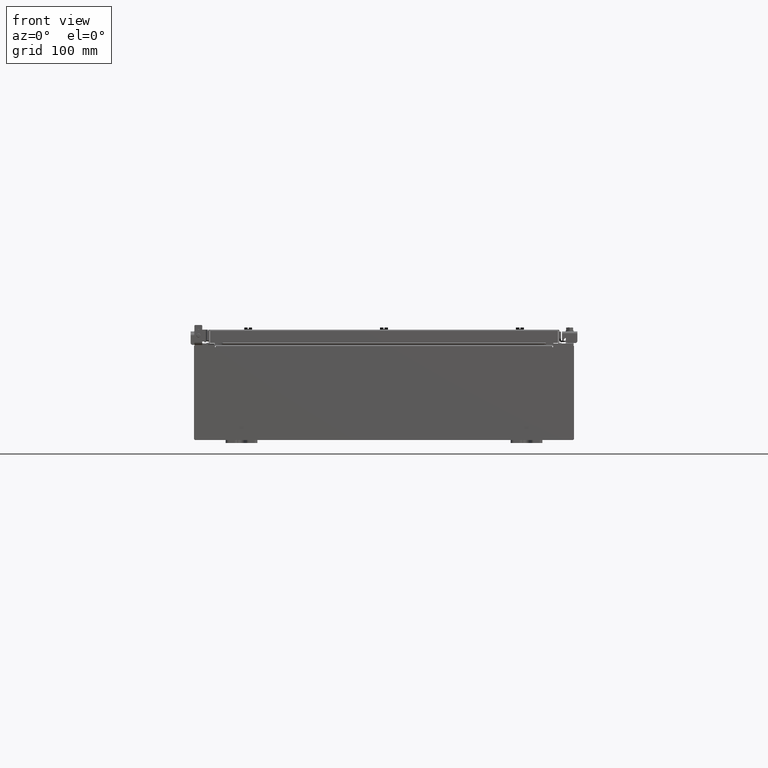
[diagram: clean part render]
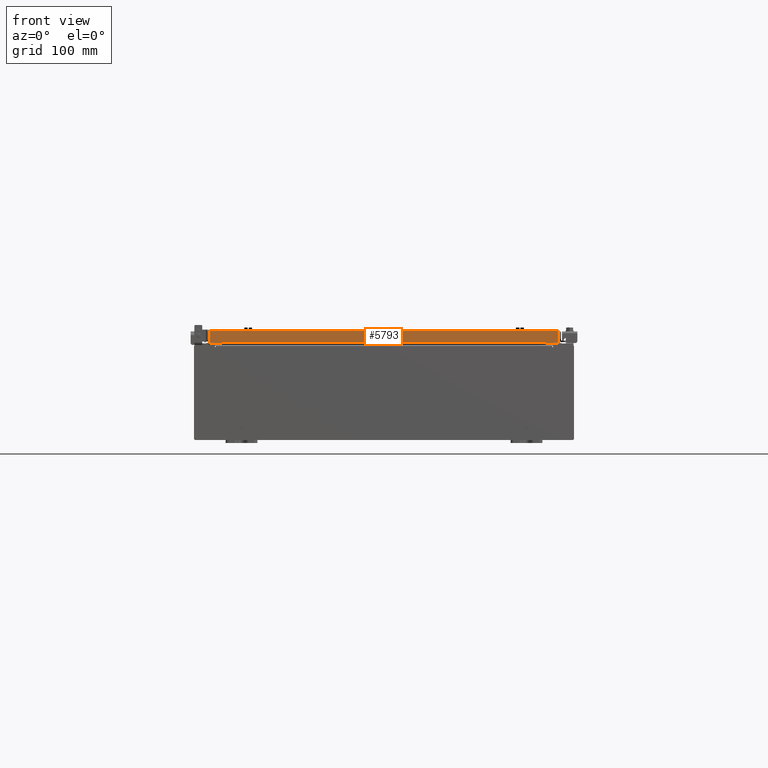
[diagram: same view with one face highlighted and labeled with its STEP entity id]
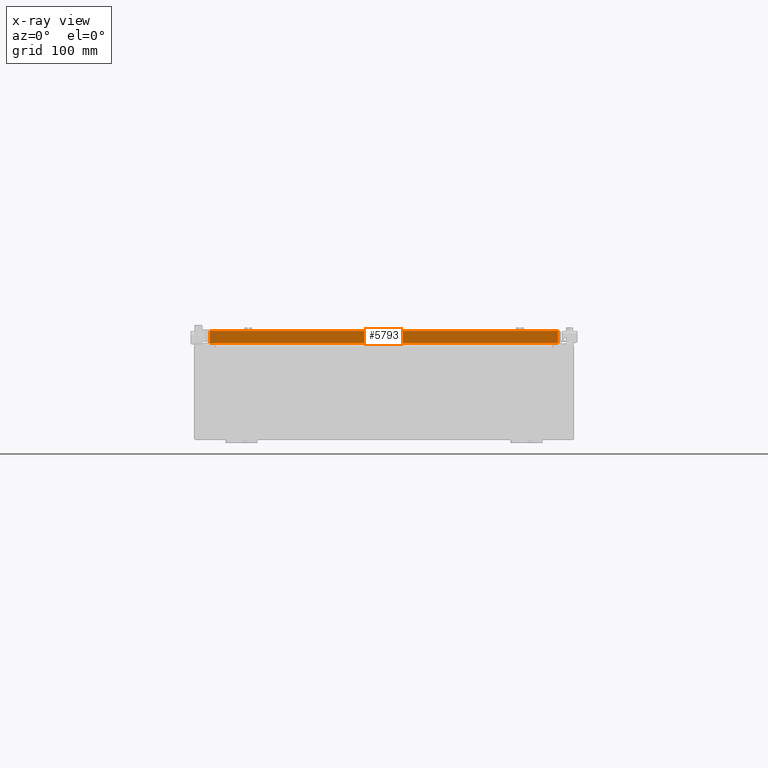
[diagram: x-ray of the same camera — body ghosted, the highlighted face saturated]
A machine part, front view. The second image highlights one B-rep face of the part: STEP entity #5793.
The next image is the same camera in x-ray: the body ghosted, the highlighted face saturated — about 0% of this face is hidden behind the body in this view.
In plain terms, the highlighted planar face has unit normal (-0, 1, -0).
Its self-contained STEP definition (entity closure, byte-faithful):
#786 = CARTESIAN_POINT ( 'NONE',  ( 11.07799999999999600, -17.09400000000000100, -0.8499999999999996400 ) ) ;
#1456 = CARTESIAN_POINT ( 'NONE',  ( 10.23915786437626700, -17.09399999999999800, -0.8500000000000012000 ) ) ;
#1516 = ORIENTED_EDGE ( 'NONE', *, *, #13986, .T. ) ;
#1693 = DIRECTION ( 'NONE',  ( -1.000000000000000000, 4.379057701015053300E-047, 1.233005954894504400E-016 ) ) ;
#1699 = AXIS2_PLACEMENT_3D ( 'NONE', #22364, #8114, #20690 ) ;
#2214 = LINE ( 'NONE', #20783, #20196 ) ;
#2250 = DIRECTION ( 'NONE',  ( 0.0000000000000000000, -2.818880942772360500E-015, -1.000000000000000000 ) ) ;
#2802 = LINE ( 'NONE', #786, #7042 ) ;
#2919 = ORIENTED_EDGE ( 'NONE', *, *, #18024, .F. ) ;
#3241 = LINE ( 'NONE', #1456, #16988 ) ;
#3283 = DIRECTION ( 'NONE',  ( -1.000000000000000000, 0.0000000000000000000, 0.0000000000000000000 ) ) ;
#3595 = EDGE_CURVE ( 'NONE', #17325, #19480, #2214, .T. ) ;
#4311 = EDGE_CURVE ( 'NONE', #19480, #13800, #22152, .T. ) ;
#4323 = CARTESIAN_POINT ( 'NONE',  ( 11.07799999999999600, -17.09400000000000100, -0.8499999999999996400 ) ) ;
#5491 = EDGE_CURVE ( 'NONE', #14289, #18895, #2802, .T. ) ;
#5793 = ADVANCED_FACE ( 'NONE', ( #7617 ), #11646, .F. ) ;
#7042 = VECTOR ( 'NONE', #20600, 39.37007874015748100 ) ;
#7617 = FACE_OUTER_BOUND ( 'NONE', #9059, .T. ) ;
#7637 = CARTESIAN_POINT ( 'NONE',  ( 10.98915786437626700, -17.09400000000000100, -0.8499999999999996400 ) ) ;
#7732 = CARTESIAN_POINT ( 'NONE',  ( 10.98915786437626500, -17.09400000000000100, -0.08769999999999897300 ) ) ;
#8114 = DIRECTION ( 'NONE',  ( -3.475696988576954900E-031, 1.000000000000000000, -2.818880942772360500E-015 ) ) ;
#9059 = EDGE_LOOP ( 'NONE', ( #18515, #1516, #9233, #2919, #14568, #14760 ) ) ;
#9233 = ORIENTED_EDGE ( 'NONE', *, *, #5491, .F. ) ;
#9397 = CARTESIAN_POINT ( 'NONE',  ( 11.07799999999999600, -17.09400000000000100, -0.08770000000000007000 ) ) ;
#10261 = LINE ( 'NONE', #9397, #13929 ) ;
#10545 = VERTEX_POINT ( 'NONE', #17071 ) ;
#11173 = DIRECTION ( 'NONE',  ( 1.000000000000000000, 6.951393977153906300E-032, -9.864047639156036200E-017 ) ) ;
#11193 = CARTESIAN_POINT ( 'NONE',  ( -10.98915786437626900, -17.09400000000000100, 4.844676449176231400E-014 ) ) ;
#11260 = VECTOR ( 'NONE', #2250, 39.37007874015748100 ) ;
#11646 = PLANE ( 'NONE',  #1699 ) ;
#11844 = LINE ( 'NONE', #11193, #11260 ) ;
#13800 = VERTEX_POINT ( 'NONE', #17885 ) ;
#13929 = VECTOR ( 'NONE', #11173, 39.37007874015748100 ) ;
#13986 = EDGE_CURVE ( 'NONE', #10545, #18895, #11844, .T. ) ;
#14289 = VERTEX_POINT ( 'NONE', #15928 ) ;
#14568 = ORIENTED_EDGE ( 'NONE', *, *, #4311, .F. ) ;
#14760 = ORIENTED_EDGE ( 'NONE', *, *, #3595, .F. ) ;
#15359 = DIRECTION ( 'NONE',  ( -0.0000000000000000000, -2.818880942772360500E-015, -1.000000000000000000 ) ) ;
#15928 = CARTESIAN_POINT ( 'NONE',  ( -10.23915786437627100, -17.09399999999999800, -0.8500000000000012000 ) ) ;
#16645 = EDGE_CURVE ( 'NONE', #10545, #17325, #10261, .T. ) ;
#16988 = VECTOR ( 'NONE', #3283, 39.37007874015748100 ) ;
#17071 = CARTESIAN_POINT ( 'NONE',  ( -10.98915786437627200, -17.09400000000000100, -0.08769999999999787700 ) ) ;
#17325 = VERTEX_POINT ( 'NONE', #7732 ) ;
#17366 = VECTOR ( 'NONE', #1693, 39.37007874015748100 ) ;
#17885 = CARTESIAN_POINT ( 'NONE',  ( 10.23915786437626700, -17.09399999999999800, -0.8500000000000012000 ) ) ;
#18024 = EDGE_CURVE ( 'NONE', #13800, #14289, #3241, .T. ) ;
#18515 = ORIENTED_EDGE ( 'NONE', *, *, #16645, .F. ) ;
#18895 = VERTEX_POINT ( 'NONE', #20374 ) ;
#19480 = VERTEX_POINT ( 'NONE', #7637 ) ;
#20196 = VECTOR ( 'NONE', #15359, 39.37007874015748100 ) ;
#20374 = CARTESIAN_POINT ( 'NONE',  ( -10.98915786437627200, -17.09400000000000100, -0.8499999999999969800 ) ) ;
#20600 = DIRECTION ( 'NONE',  ( -1.000000000000000000, 4.379057701015053300E-047, 1.233005954894504400E-016 ) ) ;
#20690 = DIRECTION ( 'NONE',  ( 0.0000000000000000000, 2.818880942772360500E-015, 1.000000000000000000 ) ) ;
#20783 = CARTESIAN_POINT ( 'NONE',  ( 10.98915786437626700, -17.09400000000000100, -0.07469999999999978000 ) ) ;
#22152 = LINE ( 'NONE', #4323, #17366 ) ;
#22364 = CARTESIAN_POINT ( 'NONE',  ( 5.941356432273447100E-030, -17.09400000000000100, 4.844676449176231400E-014 ) ) ;